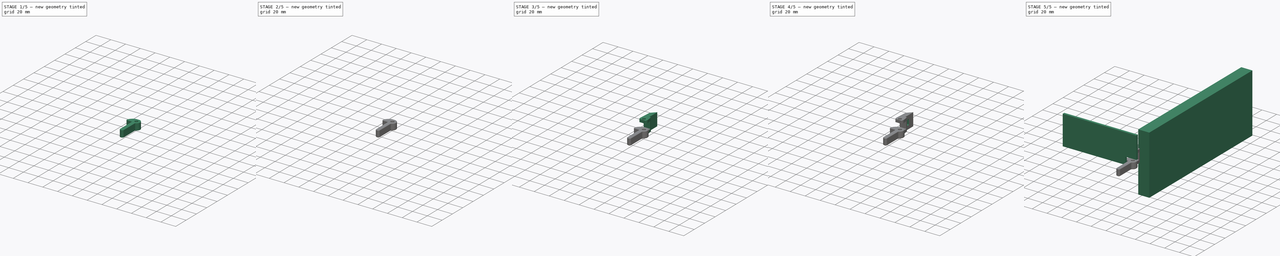
[diagram: build sequence overview — one tinted view per stage of 5, left to right]
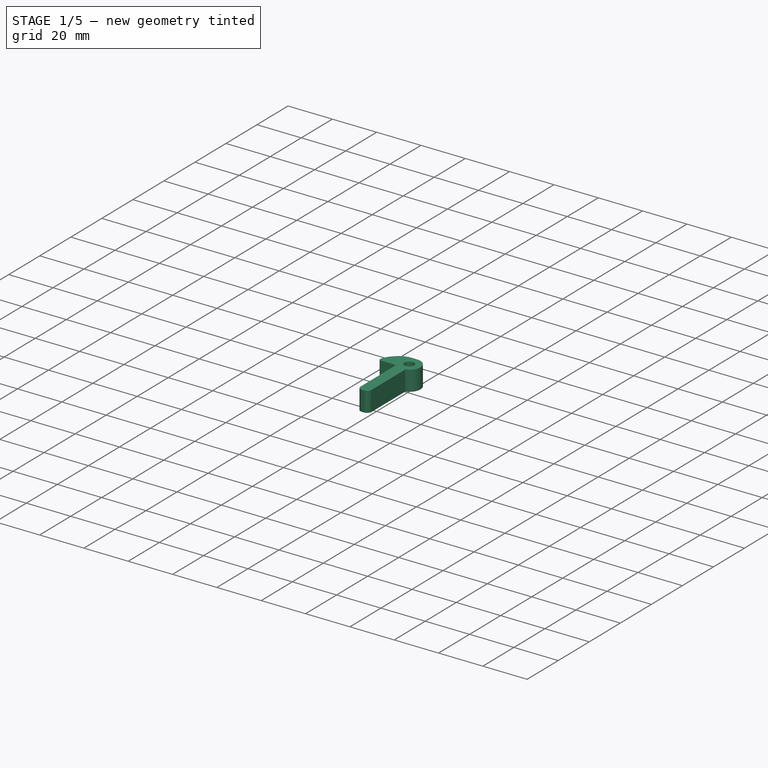
[diagram: stage 1 of 5 — iso view after this stage's code; geometry added in this stage tinted green]
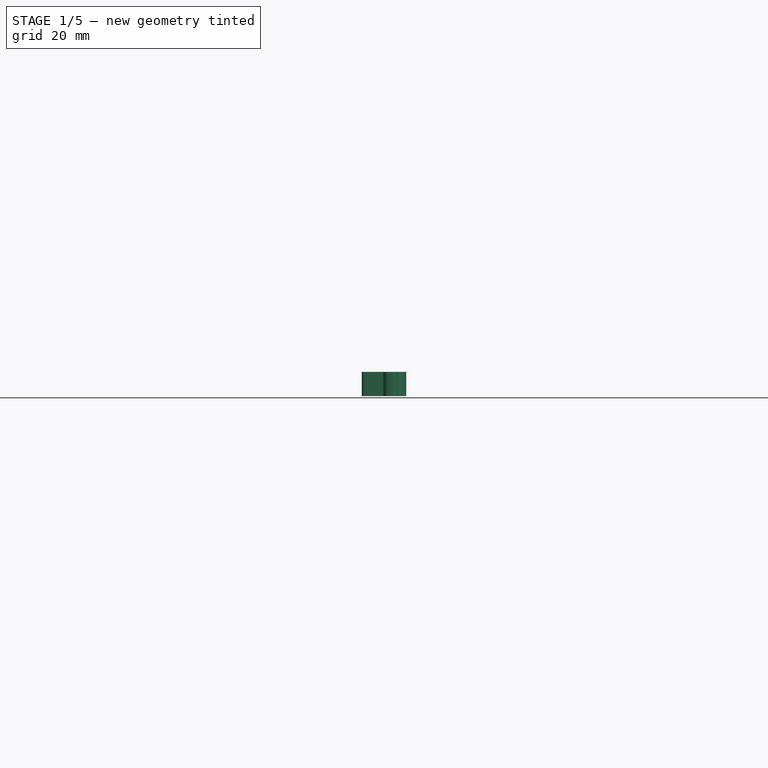
[diagram: stage 1 of 5 — front view after this stage's code; geometry added in this stage tinted green]
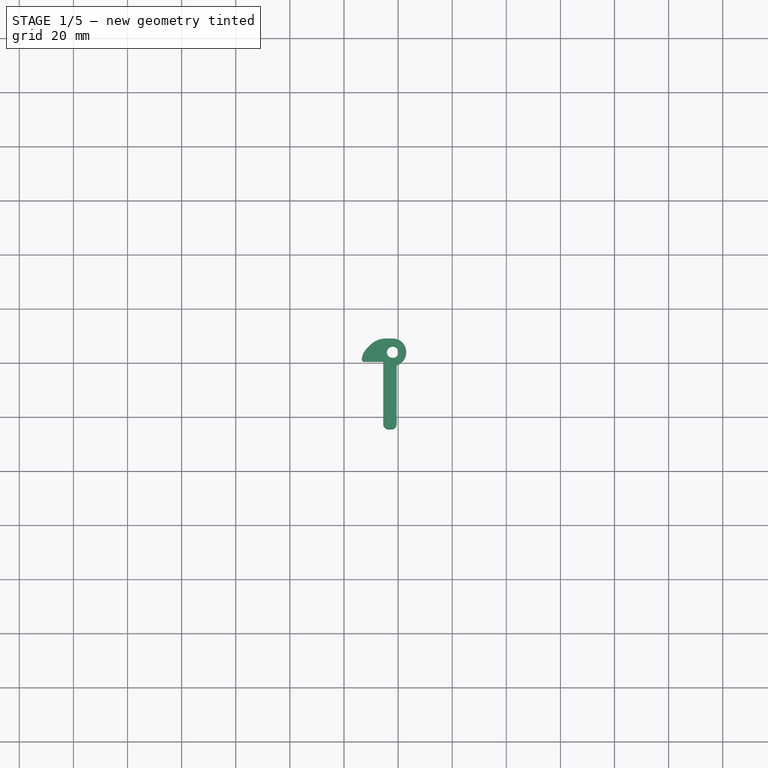
[diagram: stage 1 of 5 — top view after this stage's code; geometry added in this stage tinted green]
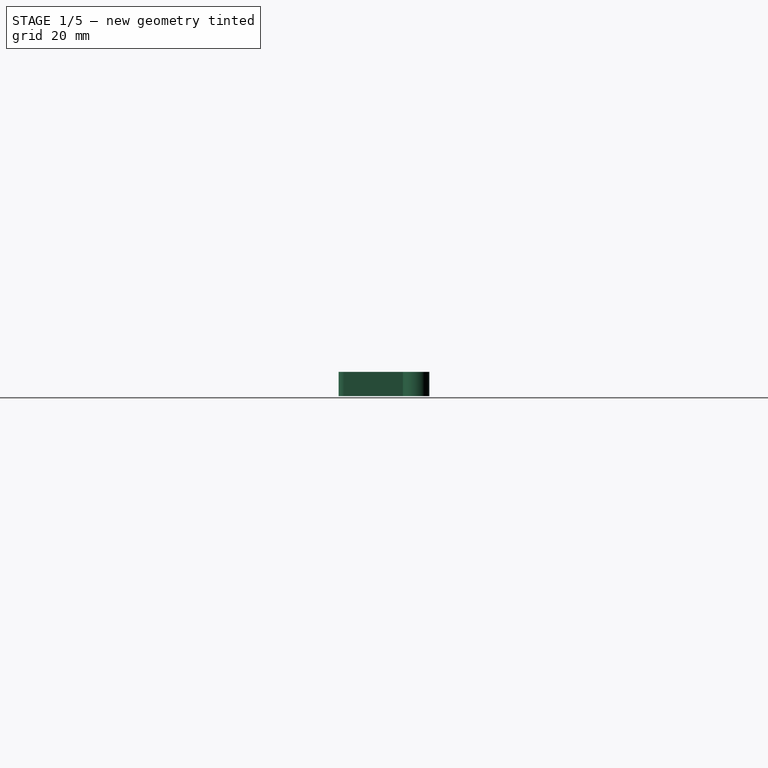
[diagram: stage 1 of 5 — right view after this stage's code; geometry added in this stage tinted green]
FCSTD DOCUMENT  (FreeCAD 0.20R25645 (Git))
Label: card-lever
License: All rights reserved
LicenseURL: http://en.wikipedia.org/wiki/All_rights_reserved
objects: Sketcher::SketchObject×9, PartDesign::Pad×6, PartDesign::Fillet×6, PartDesign::Chamfer×5, PartDesign::Body×4, PartDesign::Pocket×3
note: 53 computed .brp shape members not serialized (recipe doc carries the construction recipe); baked Part::Feature solids carry a one-line shape summary decoded from their .brp

FEATURE [PartDesign::Body] Body006  label="RodHolder"
  Group = -> [Sketch010,Pad010,Sketch011,Pocket,Sketch012,Pocket001,Sketch013,Pocket002,Chamfer003,Fillet,Chamfer004]
  Origin = -> Origin006
  Placement = pos=(0,0,-4) rot=(0,0,1;0rad)
  Tip = -> Chamfer004
FEATURE [Sketcher::SketchObject] Sketch017
  FullyConstrained = true
  MapMode = 5
  Support = -> [XY_Plane007]
  sketch-geometry (9):
    g0: Circle CenterX=-2 CenterY=4 CenterZ=0 NormalX=0 NormalY=0 NormalZ=1 AngleXU=0 Radius=2.15
    g1: LineSegment StartX=-13.5 StartY=0.5 StartZ=0 EndX=-5.5 EndY=0.5 EndZ=0
    g2: LineSegment StartX=-5.5 StartY=0.5 StartZ=0 EndX=-5.5 EndY=-24.5 EndZ=0
    g3: LineSegment StartX=-5.5 StartY=-24.5 StartZ=0 EndX=-0.5 EndY=-24.5 EndZ=0
    g4: LineSegment StartX=-0.5 StartY=-24.5 StartZ=0 EndX=-0.5 EndY=-0.769696 EndZ=0
    g5: ArcOfCircle CenterX=-2 CenterY=4 CenterZ=0 NormalX=0 NormalY=0 NormalZ=1 AngleXU=0 Radius=5 StartAngle=5.01708 EndAngle=7.85398
    g6: LineSegment StartX=-7.89949 StartY=9 StartZ=0 EndX=-2 EndY=9 EndZ=0
    g7: LineSegment StartX=-7.89949 StartY=9 StartZ=0 EndX=-11.4497 EndY=5.44975 EndZ=0
    g8: ArcOfCircle CenterX=-6.5 CenterY=0.5 CenterZ=0 NormalX=0 NormalY=0 NormalZ=1 AngleXU=0 Radius=7 StartAngle=2.35619 EndAngle=3.14159
  constraints (26):
    c: Radius(g0) = 2.15
    c: DistanceX(g0,g-1) = 2
    c: DistanceY(g-1,g0) = 4
    c: Horizontal(g1)
    c: Coincident(g1,g2)
    c: Vertical(g2)
    c: Coincident(g2,g3)
    c: Horizontal(g3)
    c: Coincident(g3,g4)
    c: Vertical(g4)
    c: Coincident(g5,g0)
    c: Coincident(g5,g4)
    c: Radius(g5) = 5
    c: Horizontal(g6)
    c: Coincident(g6,g7)
    c: PointOnObject(g8,g1)
    c: Coincident(g8,g1)
    c: DistanceY(g-1,g8) = 0.5
    c: DistanceX(g3,g3) = 5
    c: DistanceX(g4,g-1) = 0.5
    c: DistanceX(g1,g1) = 8
    c: Tangent(g8,g7) = -1.5708
    c: DistanceY(g2,g2) = 25
    c: Tangent(g6,g5) = 1.5708
    c: Angle(g7) = -2.35619
    c: Radius(g8) = 7
FEATURE [PartDesign::Pad] Pad013
  Direction = (0,0,1)
  Length = 9
  Length2 = 100
  Midplane = true
  Profile = -> Sketch017
  Refine = true
  Type = 0
FEATURE [PartDesign::Fillet] Fillet009
  Base = -> Pad013 [Edge5,Edge8]
  BaseFeature = -> Pad013
  Radius = 2
  Refine = true
  SupportTransform = false
FEATURE [PartDesign::Fillet] Fillet010
  Base = -> Fillet009 [Edge17]
  BaseFeature = -> Fillet009
  Radius = 1
  Refine = true
  SupportTransform = false
FEATURE [PartDesign::Fillet] Fillet011
  Base = -> Fillet010 [Edge24]
  BaseFeature = -> Fillet010
  Radius = 8
  Refine = true
  SupportTransform = false
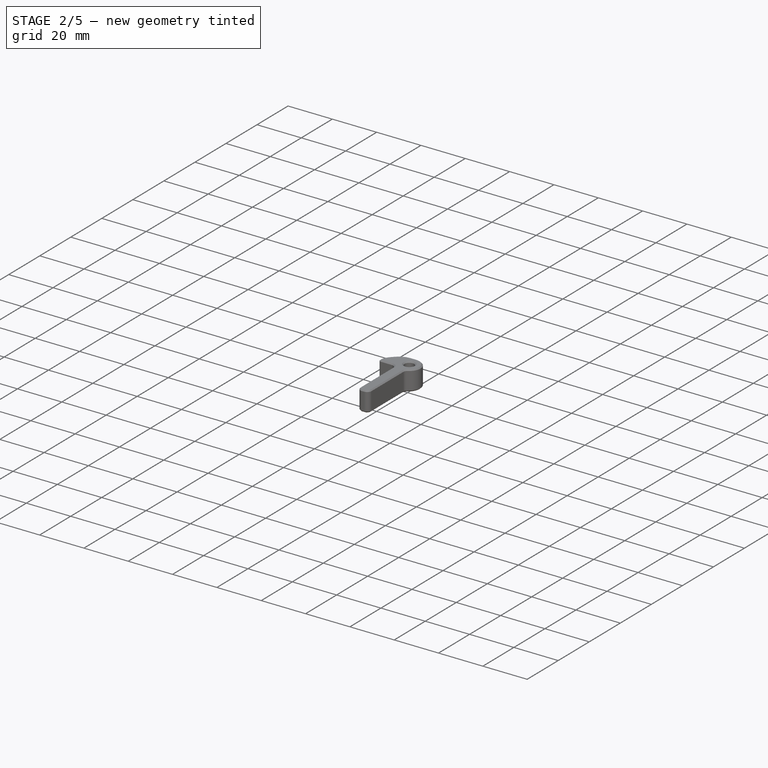
[diagram: stage 2 of 5 — iso view after this stage's code; geometry added in this stage tinted green]
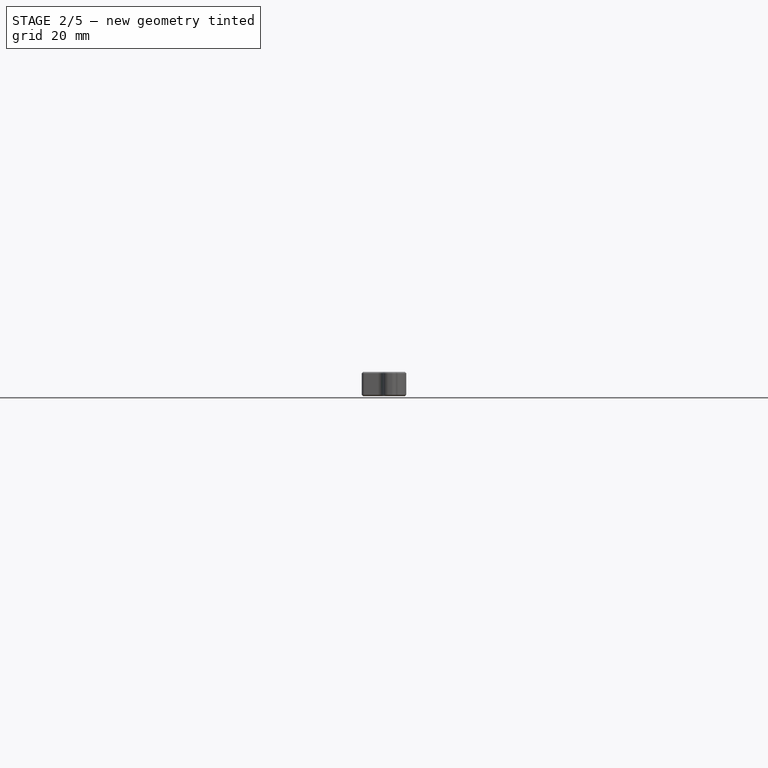
[diagram: stage 2 of 5 — front view after this stage's code; geometry added in this stage tinted green]
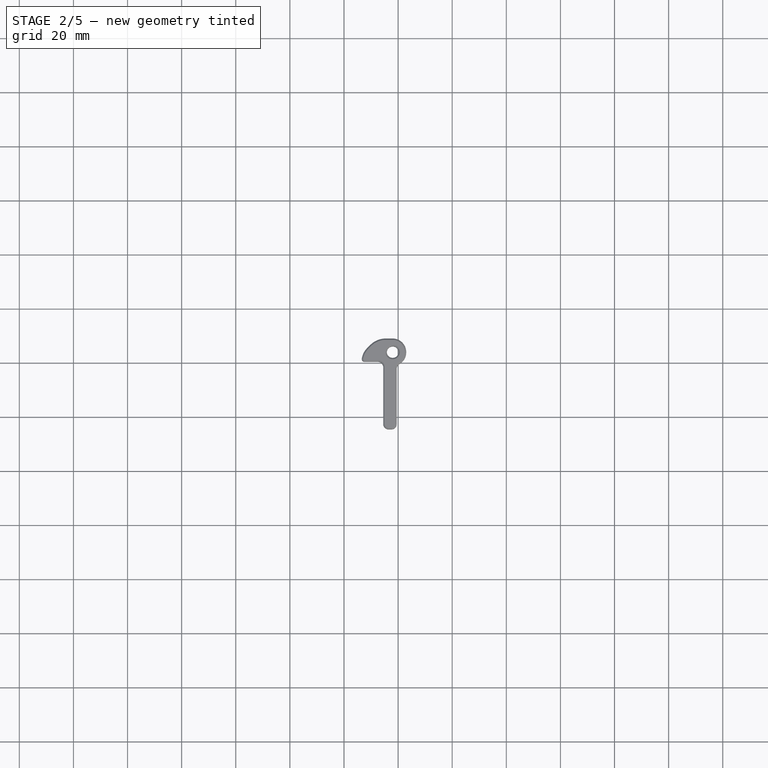
[diagram: stage 2 of 5 — top view after this stage's code; geometry added in this stage tinted green]
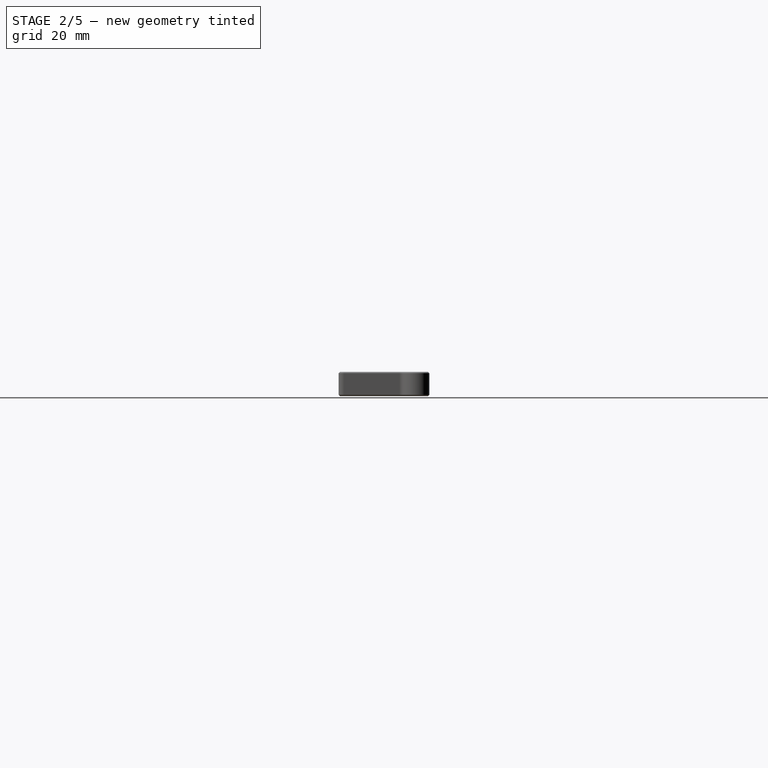
[diagram: stage 2 of 5 — right view after this stage's code; geometry added in this stage tinted green]
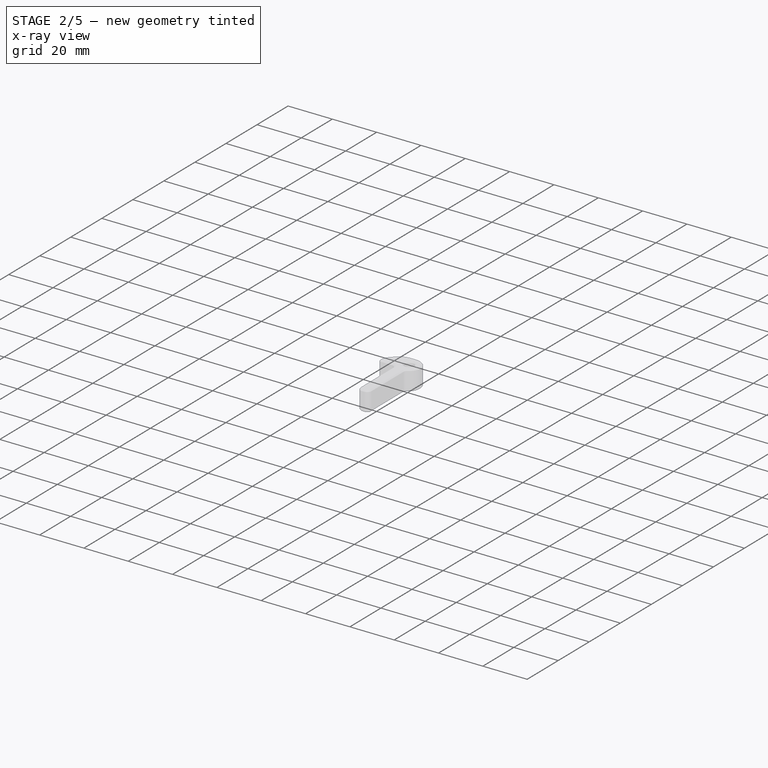
[diagram: stage 2 of 5 — x-ray composite at the iso view; earlier geometry ghosted, this stage's added geometry solid]
FEATURE [PartDesign::Fillet] Fillet012
  Base = -> Fillet011 [Edge25]
  BaseFeature = -> Fillet011
  Radius = 2
  Refine = true
  SupportTransform = false
FEATURE [PartDesign::Fillet] Fillet013
  Base = -> Fillet012 [Edge38]
  BaseFeature = -> Fillet012
  Radius = 2
  Refine = true
  SupportTransform = false
FEATURE [PartDesign::Chamfer] Chamfer005
  Angle = 45
  Base = -> Fillet013 [Edge45,Edge15]
  BaseFeature = -> Fillet013
  ChamferType = 0
  FlipDirection = false
  Refine = true
  Size = 0.5
  Size2 = 1
  SupportTransform = false
FEATURE [PartDesign::Chamfer] Chamfer006
  Angle = 45
  Base = -> Chamfer005 [Edge2,Edge20]
  BaseFeature = -> Chamfer005
  ChamferType = 0
  FlipDirection = false
  Refine = true
  Size = 0.5
  Size2 = 1
  SupportTransform = false
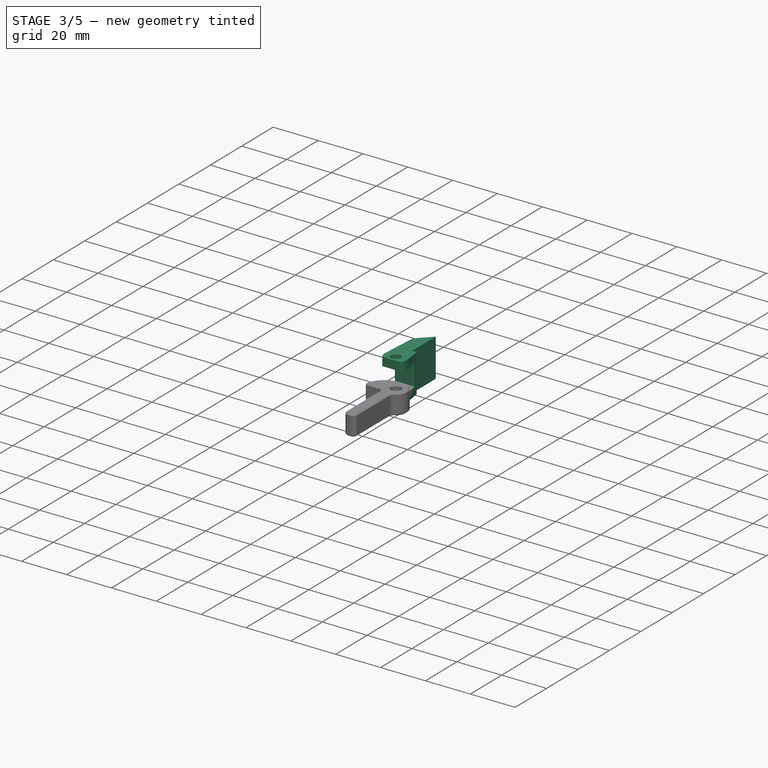
[diagram: stage 3 of 5 — iso view after this stage's code; geometry added in this stage tinted green]
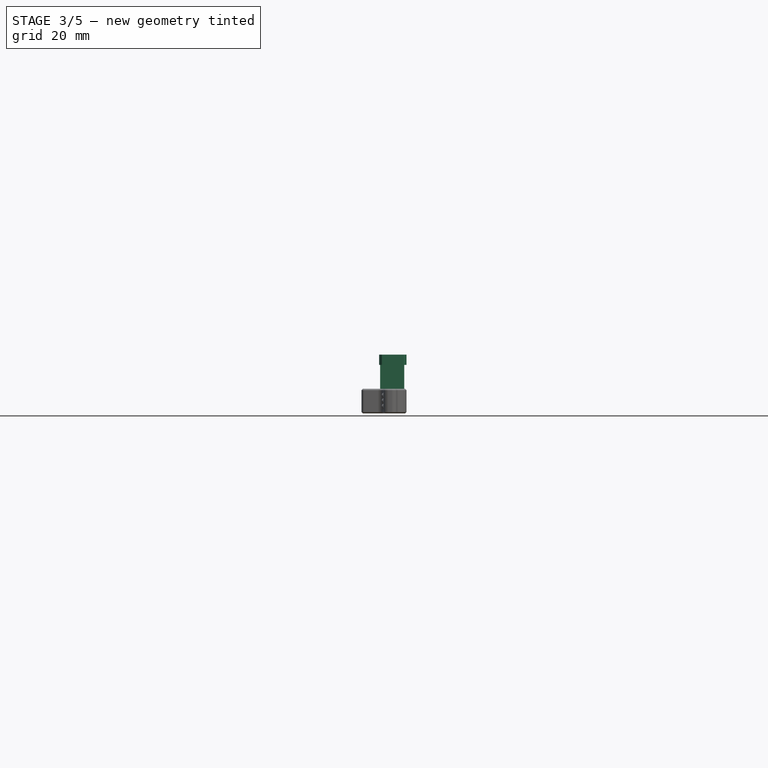
[diagram: stage 3 of 5 — front view after this stage's code; geometry added in this stage tinted green]
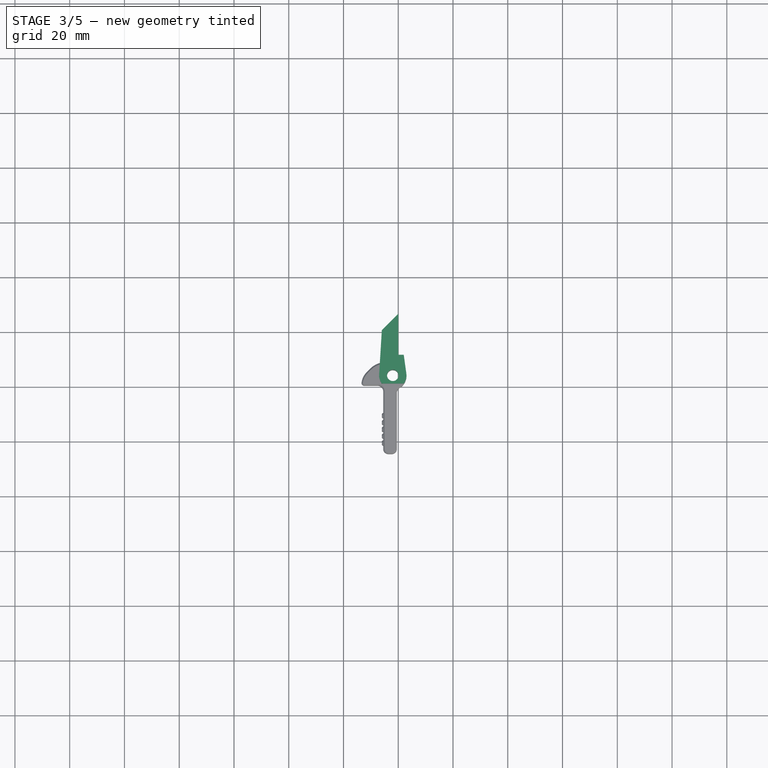
[diagram: stage 3 of 5 — top view after this stage's code; geometry added in this stage tinted green]
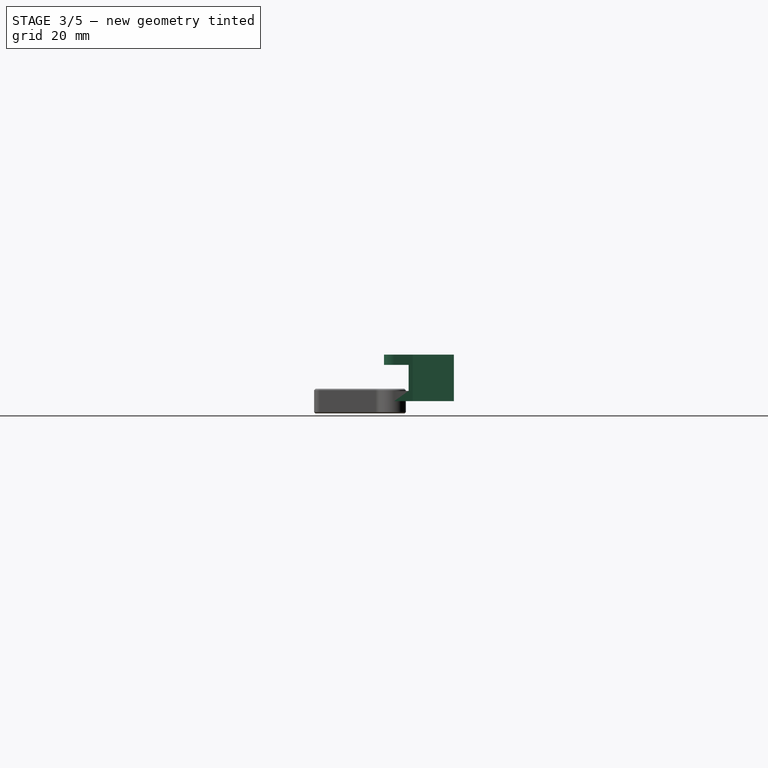
[diagram: stage 3 of 5 — right view after this stage's code; geometry added in this stage tinted green]
FEATURE [PartDesign::Body] Body  label="Panel"
  Group = -> [Sketch,Pad,Sketch002,Pad002]
  Origin = -> Origin
  Tip = -> Pad002
FEATURE [Sketcher::SketchObject] Sketch010
  FullyConstrained = true
  MapMode = 5
  Support = -> [XY_Plane006]
  sketch-geometry (9):
    g0: LineSegment StartX=0 StartY=26.5 StartZ=0 EndX=0 EndY=11.5 EndZ=0
    g1: LineSegment StartX=0 StartY=11.5 StartZ=0 EndX=2 EndY=11.5 EndZ=0
    g2: LineSegment StartX=2 StartY=11.5 StartZ=0 EndX=2.95183 EndY=4.69236 EndZ=0
    g3: LineSegment StartX=-6.99067 StartY=4.30529 StartZ=0 EndX=-6 EndY=20.5 EndZ=0
    g4: LineSegment StartX=0 StartY=26.5 StartZ=0 EndX=-6 EndY=20.5 EndZ=0
    g5: ArcOfCircle CenterX=-2 CenterY=4 CenterZ=0 NormalX=0 NormalY=0 NormalZ=1 AngleXU=0 Radius=5 StartAngle=3.0805 EndAngle=3.78509
    g6: ArcOfCircle CenterX=-2 CenterY=4 CenterZ=0 NormalX=0 NormalY=0 NormalZ=1 AngleXU=0 Radius=5 StartAngle=5.63968 EndAngle=6.4221
    g7: LineSegment StartX=-6 StartY=1 StartZ=0 EndX=2 EndY=1 EndZ=0
    g8: Circle CenterX=-2 CenterY=4 CenterZ=0 NormalX=0 NormalY=0 NormalZ=1 AngleXU=0 Radius=2.1
  constraints (25):
    c: Vertical(g0)
    c: PointOnObject(g0,g-2)
    c: DistanceY(g-1,g0) = 11.5
    c: Coincident(g0,g1)
    c: Horizontal(g1)
    c: Coincident(g1,g2)
    c: DistanceX(g1,g1) = 2
    c: DistanceY(g0,g0) = 15
    c: Coincident(g4,g0)
    c: Coincident(g4,g3)
    c: Coincident(g6,g5)
    c: DistanceX(g5,g-1) = 2
    c: DistanceY(g-1,g5) = 4
    c: Tangent(g5,g3) = 1.5708
    c: Equal(g5,g6)
    c: Radius(g5) = 5
    c: Coincident(g7,g5)
    c: Coincident(g7,g6)
    c: Horizontal(g7)
    c: DistanceY(g-1,g6) = 1
    c: Coincident(g8,g5)
    c: Radius(g8) = 2.1
    c: Angle(g4) = -2.35619
    c: DistanceX(g3,g0) = 6
    c: Tangent(g6,g2) = 1.5708
FEATURE [PartDesign::Pad] Pad010
  Direction = (0,0,1)
  Length = 17
  Length2 = 100
  Profile = -> Sketch010
  Refine = true
  Type = 0
FEATURE [Sketcher::SketchObject] Sketch011
  ExternalGeometry = -> [Pad010]
  FullyConstrained = true
  MapMode = 5
  Placement = pos=(0,0,0) rot=(0.57735,0.57735,0.57735;2.0944rad)
  Support = -> [YZ_Plane006]
  sketch-geometry (5):
    g0: LineSegment StartX=1 StartY=13.25 StartZ=0 EndX=10 EndY=13.25 EndZ=0
    g1: LineSegment StartX=10 StartY=13.25 StartZ=0 EndX=10 EndY=3.75 EndZ=0
    g2: LineSegment StartX=10 StartY=3.75 StartZ=0 EndX=1 EndY=3.75 EndZ=0
    g3: LineSegment StartX=1 StartY=3.75 StartZ=0 EndX=1 EndY=13.25 EndZ=0
    g4: LineSegment StartX=1 StartY=8.5 StartZ=0 EndX=10 EndY=8.5 EndZ=0
  constraints (14):
    c: Coincident(g0,g1)
    c: Coincident(g1,g2)
    c: Coincident(g2,g3)
    c: Coincident(g3,g0)
    c: Horizontal(g0)
    c: Horizontal(g2)
    c: Vertical(g1)
    c: PointOnObject(g0,g-3)
    c: PointOnObject(g4,g3)
    c: PointOnObject(g4,g1)
    c: Symmetric(g0,g2,g4)
    c: Symmetric(g-3,g-3,g4)
    c: DistanceY(g3,g3) = 9.5
    c: DistanceX(g0,g0) = 9
FEATURE [PartDesign::Pocket] Pocket
  BaseFeature = -> Pad010
  Length = 5
  Length2 = 100
  Midplane = true
  Profile = -> Sketch011
  Refine = true
  Type = 1
FEATURE [Sketcher::SketchObject] Sketch018
  ExternalGeometry = -> [Chamfer006]
  FullyConstrained = true
  MapMode = 5
  Placement = pos=(-5.5,0,0) rot=(0.57735,-0.57735,-0.57735;2.0944rad)
  Support = -> [Chamfer006]
  sketch-geometry (12):
    g0: Circle CenterX=10.5 CenterY=2 CenterZ=0 NormalX=0 NormalY=0 NormalZ=1 AngleXU=0 Radius=1
    g1: Circle CenterX=15.5 CenterY=2 CenterZ=0 NormalX=0 NormalY=0 NormalZ=1 AngleXU=0 Radius=1
    g2: Circle CenterX=20.5 CenterY=2 CenterZ=0 NormalX=0 NormalY=0 NormalZ=1 AngleXU=0 Radius=1
    g3: Circle CenterX=13 CenterY=0 CenterZ=0 NormalX=0 NormalY=0 NormalZ=1 AngleXU=0 Radius=1
    g4: Circle CenterX=18 CenterY=0 CenterZ=0 NormalX=0 NormalY=0 NormalZ=1 AngleXU=0 Radius=1
    g5: Circle CenterX=10.5 CenterY=-2 CenterZ=0 NormalX=0 NormalY=0 NormalZ=1 AngleXU=0 Radius=1
    g6: Circle CenterX=15.5 CenterY=-2 CenterZ=0 NormalX=0 NormalY=0 NormalZ=1 AngleXU=0 Radius=1
    g7: Circle CenterX=20.5 CenterY=-2 CenterZ=0 NormalX=0 NormalY=0 NormalZ=1 AngleXU=0 Radius=1
    g8: LineSegment StartX=10.5 StartY=2 StartZ=0 EndX=15.5 EndY=2 EndZ=0
    g9: LineSegment StartX=15.5 StartY=2 StartZ=0 EndX=20.5 EndY=2 EndZ=0
    g10: LineSegment StartX=13 StartY=0 StartZ=0 EndX=18 EndY=0 EndZ=0
    g11: LineSegment StartX=15.5 StartY=-2 StartZ=0 EndX=15.5 EndY=2 EndZ=0
  constraints (28):
    c: PointOnObject(g3,g-1)
    c: Equal(g1,g0)
    c: Equal(g0,g2)
    c: Equal(g2,g4)
    c: Equal(g4,g3)
    c: Equal(g3,g5)
    c: Equal(g5,g6)
    c: Equal(g6,g7)
    c: Radius(g0) = 1
    c: Coincident(g8,g0)
    c: Horizontal(g8)
    c: Coincident(g9,g8)
    c: Coincident(g9,g2)
    c: Horizontal(g9)
    c: Coincident(g1,g8)
    c: Equal(g8,g9)
    c: Symmetric(g5,g0,g-1)
    c: Symmetric(g6,g1,g-1)
    c: Symmetric(g7,g2,g-1)
    c: Coincident(g10,g3)
    c: Coincident(g10,g4)
    c: Equal(g10,g8)
    c: Coincident(g11,g6)
    c: Coincident(g11,g1)
    c: Symmetric(g3,g4,g11)
    c: DistanceY(g3,g0) = 2
    c: DistanceX(g8,g8) = 5
    c: DistanceX(g2,g-3) = 2
FEATURE [PartDesign::Pad] Pad014
  BaseFeature = -> Chamfer006
  Direction = (-1,0,0)
  Length = 0.5
  Length2 = 100
  Profile = -> Sketch018
  Refine = true
  Type = 0
FEATURE [PartDesign::Chamfer] Chamfer007
  Angle = 45
  Base = -> Pad014 [Edge88,Edge94,Edge90,Edge92,Edge98,Edge100,Edge102,Edge96]
  BaseFeature = -> Pad014
  ChamferType = 0
  FlipDirection = false
  Refine = true
  Size = 0.4
  Size2 = 1
  SupportTransform = false
FEATURE [PartDesign::Body] Body007  label="Lever"
  Group = -> [Sketch017,Pad013,Fillet009,Fillet010,Fillet011,Fillet012,Fillet013,Chamfer005,Chamfer006,Sketch018,Pad014,Chamfer007]
  Origin = -> Origin007
  Tip = -> Chamfer007
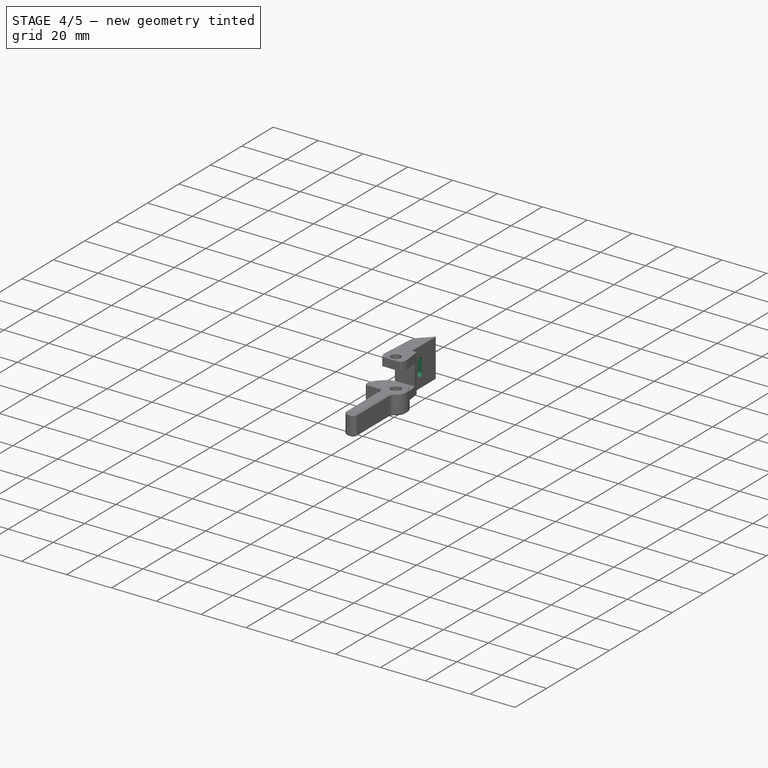
[diagram: stage 4 of 5 — iso view after this stage's code; geometry added in this stage tinted green]
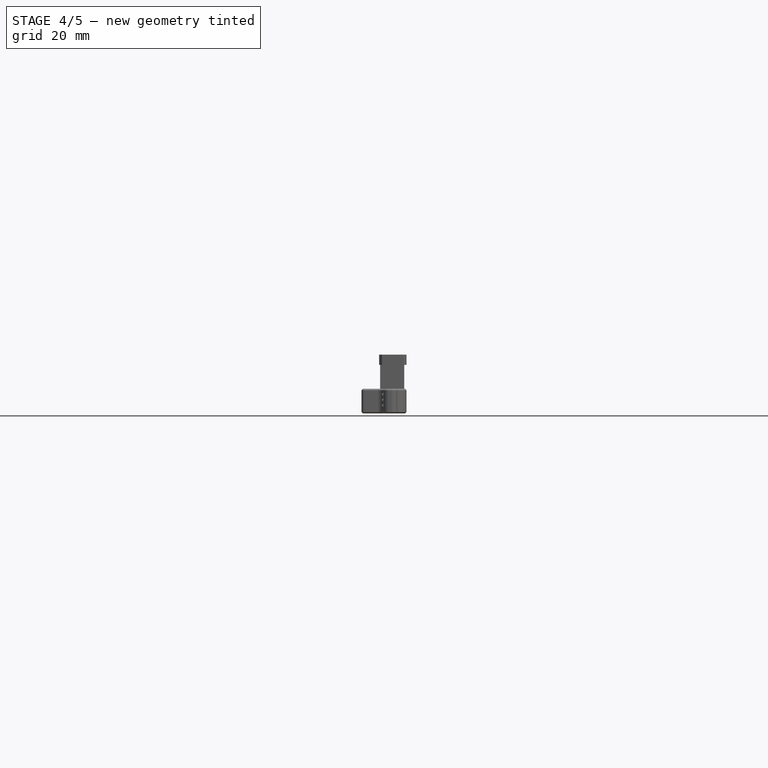
[diagram: stage 4 of 5 — front view after this stage's code; geometry added in this stage tinted green]
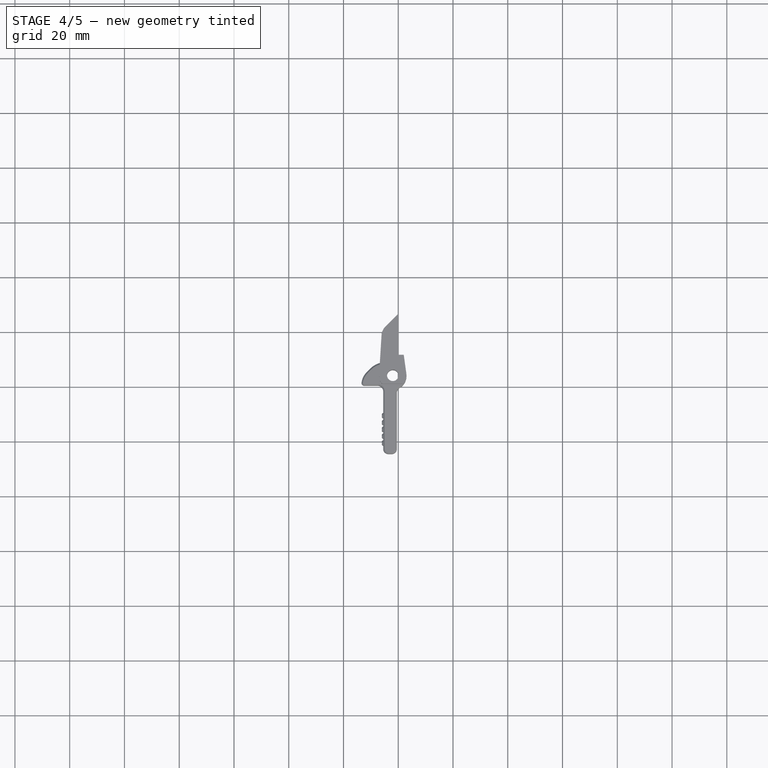
[diagram: stage 4 of 5 — top view after this stage's code; geometry added in this stage tinted green]
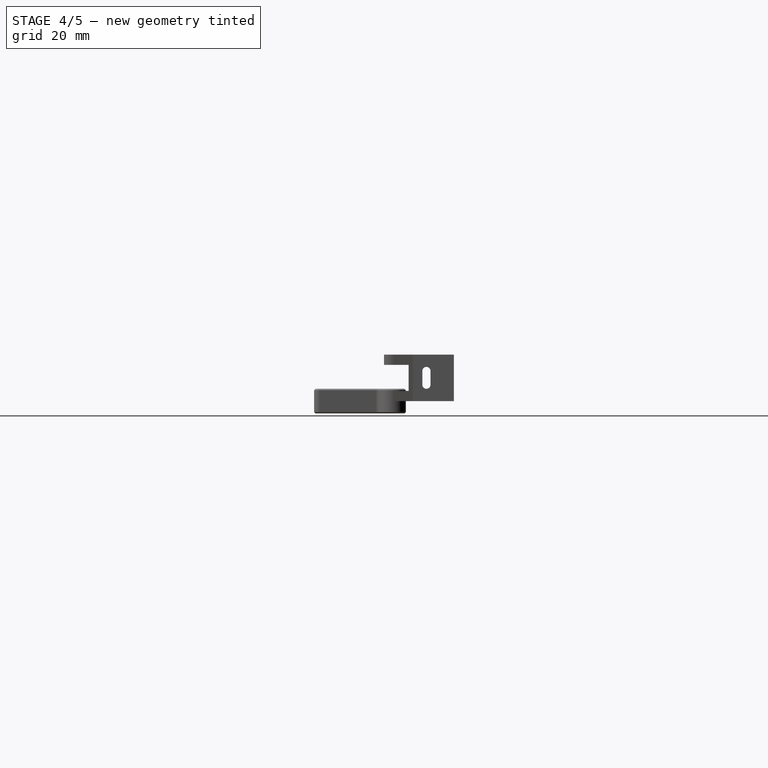
[diagram: stage 4 of 5 — right view after this stage's code; geometry added in this stage tinted green]
FEATURE [Sketcher::SketchObject] Sketch012
  ExternalGeometry = -> [Pocket]
  FullyConstrained = true
  MapMode = 5
  Placement = pos=(0,0,0) rot=(0.57735,0.57735,0.57735;2.0944rad)
  Support = -> [YZ_Plane006]
  sketch-geometry (5):
    g0: ArcOfCircle CenterX=16.5 CenterY=11 CenterZ=0 NormalX=0 NormalY=0 NormalZ=1 AngleXU=0 Radius=1.5 StartAngle=3e-16 EndAngle=3.14159
    g1: ArcOfCircle CenterX=16.5 CenterY=6 CenterZ=0 NormalX=0 NormalY=0 NormalZ=1 AngleXU=0 Radius=1.5 StartAngle=3.14159 EndAngle=6.28319
    g2: LineSegment StartX=15 StartY=11 StartZ=0 EndX=15 EndY=6 EndZ=0
    g3: LineSegment StartX=18 StartY=11 StartZ=0 EndX=18 EndY=6 EndZ=0
    g4: LineSegment StartX=10 StartY=8.5 StartZ=0 EndX=18 EndY=8.5 EndZ=0
  constraints (12):
    c: Tangent(g0,g3) = 1.5708
    c: Tangent(g0,g2) = -1.5708
    c: Tangent(g2,g1) = -1.5708
    c: Tangent(g3,g1) = 1.5708
    c: Vertical(g2)
    c: Radius(g0) = 1.5
    c: PointOnObject(g4,g3)
    c: Symmetric(g1,g0,g4)
    c: DistanceY(g1,g0) = 5
    c: DistanceX(g4,g4) = 8
    c: Symmetric(g-3,g-3,g4)
    c: PointOnObject(g4,g-3)
FEATURE [PartDesign::Pocket] Pocket001
  BaseFeature = -> Pocket
  Length = 5
  Length2 = 100
  Profile = -> Sketch012
  Refine = true
  Type = 1
FEATURE [Sketcher::SketchObject] Sketch013
  AttachmentOffset = pos=(0,0,-3) rot=(0,0,1;0rad)
  ExternalGeometry = -> [Pocket001]
  FullyConstrained = true
  MapMode = 5
  Placement = pos=(-3,7e-16,-7e-16) rot=(0.57735,0.57735,0.57735;2.0944rad)
  Support = -> [YZ_Plane006]
  sketch-geometry (4):
    g0: ArcOfCircle CenterX=16.5 CenterY=11 CenterZ=0 NormalX=0 NormalY=0 NormalZ=1 AngleXU=0 Radius=3 StartAngle=-4.583e-12 EndAngle=3.14159
    g1: ArcOfCircle CenterX=16.5 CenterY=6 CenterZ=0 NormalX=0 NormalY=0 NormalZ=1 AngleXU=0 Radius=3 StartAngle=3.14159 EndAngle=6.28319
    g2: LineSegment StartX=13.5 StartY=11 StartZ=0 EndX=13.5 EndY=6 EndZ=0
    g3: LineSegment StartX=19.5 StartY=11 StartZ=0 EndX=19.5 EndY=6 EndZ=0
  constraints (8):
    c: Tangent(g0,g3) = 1.5708
    c: Tangent(g0,g2) = -1.5708
    c: Tangent(g2,g1) = -1.5708
    c: Tangent(g3,g1) = 1.5708
    c: Vertical(g2)
    c: Radius(g0) = 3
    c: Coincident(g-7,g1)
    c: Coincident(g0,g-6)
FEATURE [PartDesign::Pocket] Pocket002
  BaseFeature = -> Pocket001
  Length = 5
  Length2 = 100
  Profile = -> Sketch013
  Refine = true
  Type = 1
FEATURE [PartDesign::Chamfer] Chamfer003
  Angle = 45
  Base = -> Pocket002 [Edge66]
  BaseFeature = -> Pocket002
  ChamferType = 0
  FlipDirection = false
  Refine = true
  Size = 1
  Size2 = 1
  SupportTransform = false
FEATURE [PartDesign::Fillet] Fillet
  Base = -> Chamfer003 [Edge35]
  BaseFeature = -> Chamfer003
  Radius = 5
  Refine = true
  SupportTransform = false
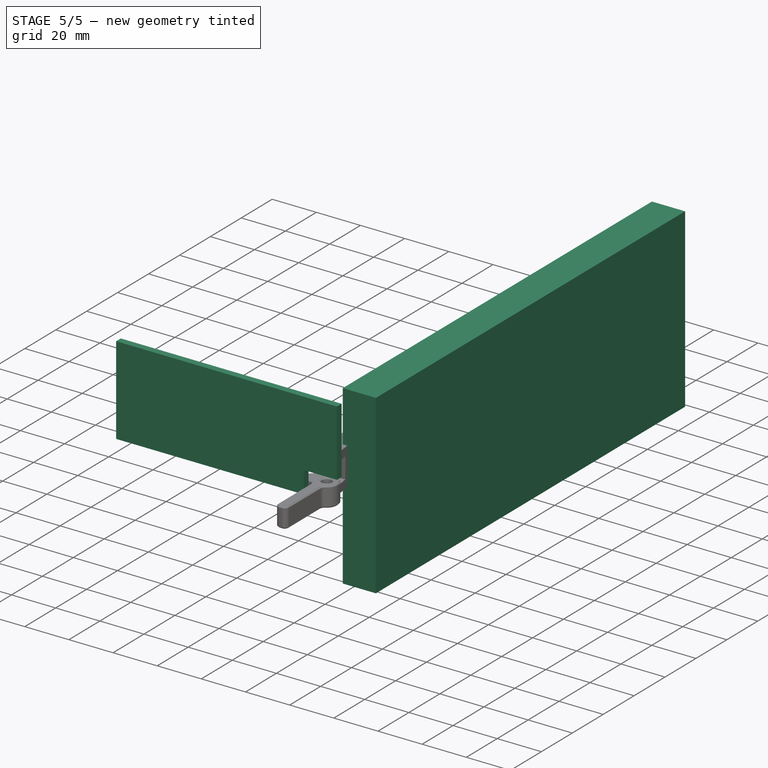
[diagram: stage 5 of 5 — iso view after this stage's code; geometry added in this stage tinted green]
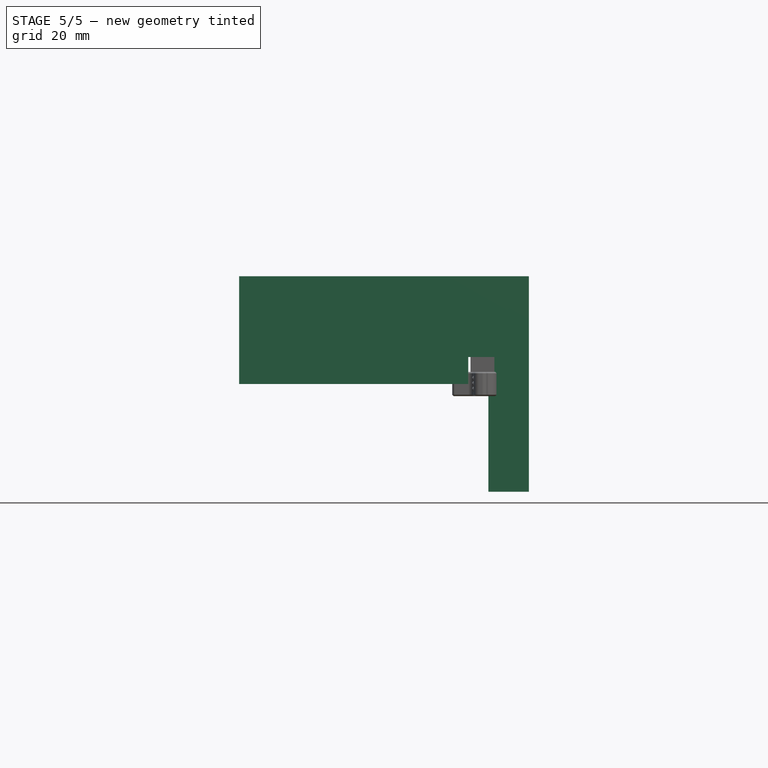
[diagram: stage 5 of 5 — front view after this stage's code; geometry added in this stage tinted green]
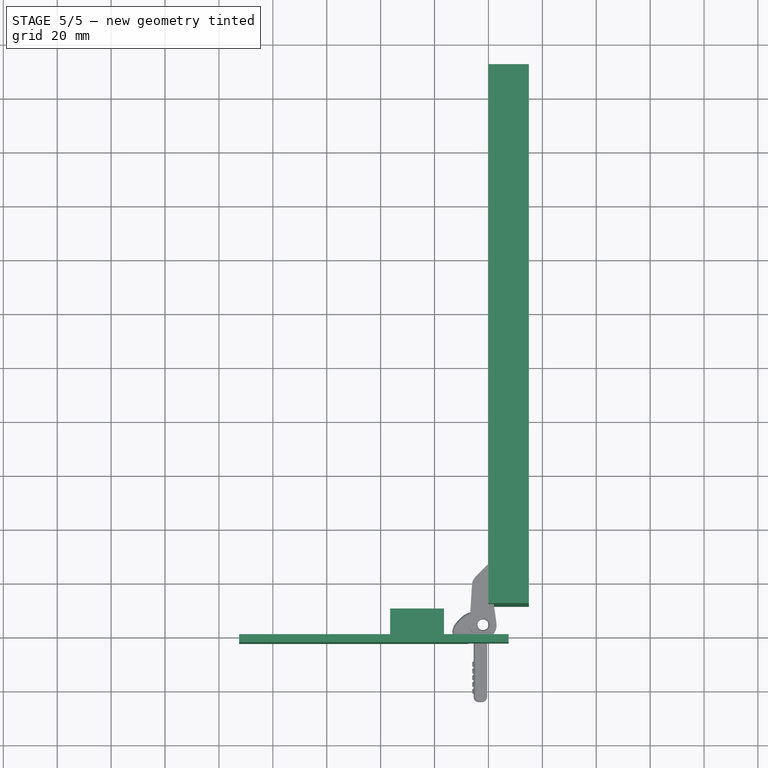
[diagram: stage 5 of 5 — top view after this stage's code; geometry added in this stage tinted green]
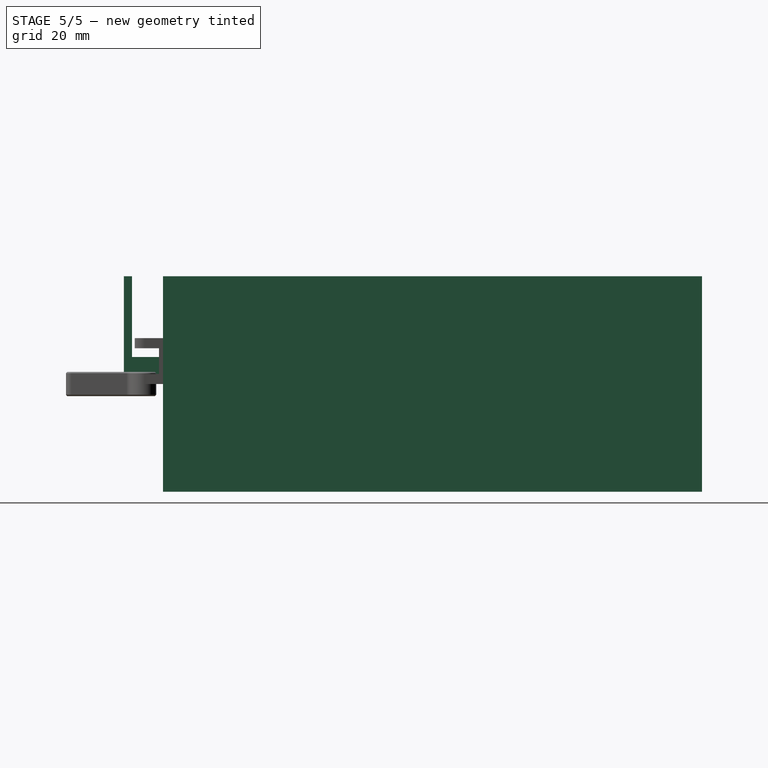
[diagram: stage 5 of 5 — right view after this stage's code; geometry added in this stage tinted green]
FEATURE [Sketcher::SketchObject] Sketch
  FullyConstrained = true
  MapMode = 5
  Placement = pos=(0,0,0) rot=(1,0,0;1.5708rad)
  Support = -> [XZ_Plane]
  sketch-geometry (6):
    g0: LineSegment StartX=-92.5 StartY=0 StartZ=0 EndX=-7.5 EndY=0 EndZ=0
    g1: LineSegment StartX=-7.5 StartY=0 StartZ=0 EndX=-7.5 EndY=10 EndZ=0
    g2: LineSegment StartX=-7.5 StartY=10 StartZ=0 EndX=7.5 EndY=10 EndZ=0
    g3: LineSegment StartX=7.5 StartY=10 StartZ=0 EndX=7.5 EndY=40 EndZ=0
    g4: LineSegment StartX=7.5 StartY=40 StartZ=0 EndX=-92.5 EndY=40 EndZ=0
    g5: LineSegment StartX=-92.5 StartY=40 StartZ=0 EndX=-92.5 EndY=0 EndZ=0
  constraints (17):
    c: PointOnObject(g0,g-1)
    c: PointOnObject(g0,g-1)
    c: Coincident(g0,g1)
    c: Vertical(g1)
    c: Coincident(g1,g2)
    c: Coincident(g2,g3)
    c: Vertical(g3)
    c: Coincident(g3,g4)
    c: Horizontal(g4)
    c: Coincident(g4,g5)
    c: Coincident(g5,g0)
    c: Vertical(g5)
    c: DistanceY(g5,g5) = 40
    c: DistanceX(g2,g2) = 15
    c: DistanceY(g1,g1) = 10
    c: Symmetric(g1,g2,g-2)
    c: DistanceX(g4,g4) = 100
FEATURE [PartDesign::Pad] Pad
  Direction = (0,-1,2e-16)
  Length = 3
  Length2 = 100
  Placement = pos=(0,0,0) rot=(1,0,0;1.5708rad)
  Profile = -> Sketch
  Refine = true
  Type = 0
FEATURE [Sketcher::SketchObject] Sketch001
  FullyConstrained = true
  MapMode = 5
  Support = -> [XY_Plane001]
  sketch-geometry (4):
    g0: LineSegment StartX=0 StartY=11.5 StartZ=0 EndX=15 EndY=11.5 EndZ=0
    g1: LineSegment StartX=15 StartY=11.5 StartZ=0 EndX=15 EndY=211.5 EndZ=0
    g2: LineSegment StartX=15 StartY=211.5 StartZ=0 EndX=0 EndY=211.5 EndZ=0
    g3: LineSegment StartX=0 StartY=211.5 StartZ=0 EndX=0 EndY=11.5 EndZ=0
  constraints (12):
    c: Coincident(g0,g1)
    c: Coincident(g1,g2)
    c: Coincident(g2,g3)
    c: Coincident(g3,g0)
    c: Horizontal(g0)
    c: Horizontal(g2)
    c: Vertical(g1)
    c: Vertical(g3)
    c: DistanceX(g2,g2) = 15
    c: PointOnObject(g0,g-2)
    c: DistanceY(g-1,g0) = 11.5
    c: DistanceY(g3,g3) = 200
FEATURE [PartDesign::Pad] Pad001
  Direction = (0,0,1)
  Length = 80
  Length2 = 100
  Midplane = true
  Profile = -> Sketch001
  Refine = true
  Type = 0
FEATURE [PartDesign::Body] Body001  label="Case"
  Group = -> [Sketch001,Pad001]
  Origin = -> Origin001
  Tip = -> Pad001
FEATURE [Sketcher::SketchObject] Sketch002
  ExternalGeometry = -> [Pad]
  FullyConstrained = true
  MapMode = 5
  Placement = pos=(0,0,0) rot=(-1,0,0;1.5708rad)
  Support = -> [Pad]
  sketch-geometry (4):
    g0: LineSegment StartX=-36.5 StartY=0 StartZ=0 EndX=-16.5 EndY=0 EndZ=0
    g1: LineSegment StartX=-16.5 StartY=0 StartZ=0 EndX=-16.5 EndY=-10 EndZ=0
    g2: LineSegment StartX=-16.5 StartY=-10 StartZ=0 EndX=-36.5 EndY=-10 EndZ=0
    g3: LineSegment StartX=-36.5 StartY=-10 StartZ=0 EndX=-36.5 EndY=0 EndZ=0
  constraints (12):
    c: Coincident(g0,g1)
    c: Coincident(g1,g2)
    c: Coincident(g2,g3)
    c: Coincident(g3,g0)
    c: Horizontal(g0)
    c: Horizontal(g2)
    c: Vertical(g1)
    c: Vertical(g3)
    c: PointOnObject(g0,g-1)
    c: DistanceY(g1,g1) = 10
    c: DistanceX(g2,g2) = 20
    c: DistanceX(g0,g-3) = 9
FEATURE [PartDesign::Pad] Pad002
  BaseFeature = -> Pad
  Direction = (0,1,-7e-16)
  Length = 10
  Length2 = 100
  Placement = pos=(0,0,0) rot=(1,0,0;1.5708rad)
  Profile = -> Sketch002
  Refine = true
  Type = 0
FEATURE [PartDesign::Chamfer] Chamfer004
  Angle = 45
  Base = -> Fillet [Edge66,Edge55,Edge38,Edge48]
  BaseFeature = -> Fillet
  ChamferType = 0
  FlipDirection = false
  Refine = true
  Size = 0.4
  Size2 = 1
  SupportTransform = false
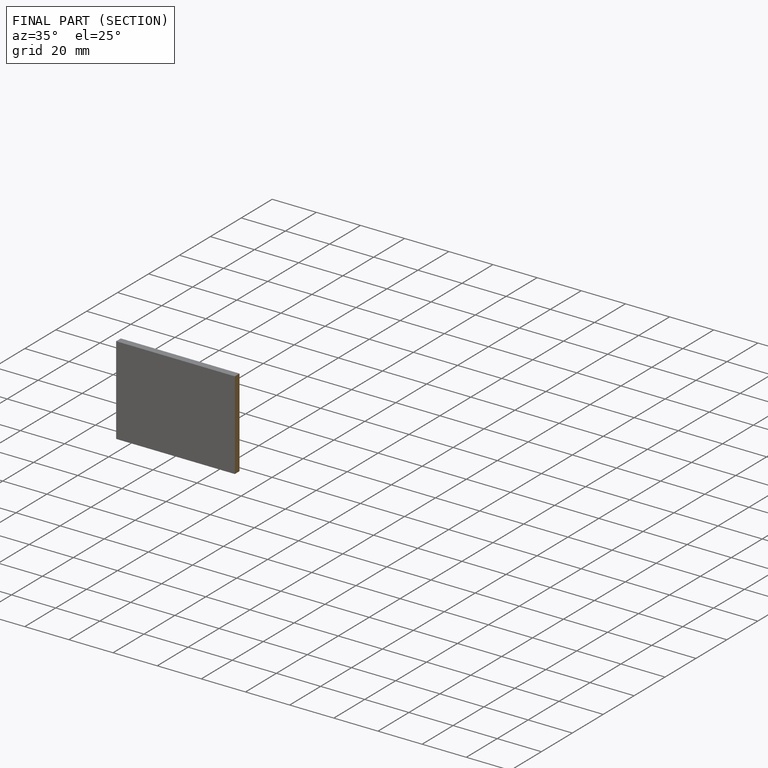
[diagram: finished part — half-section view (interior)]
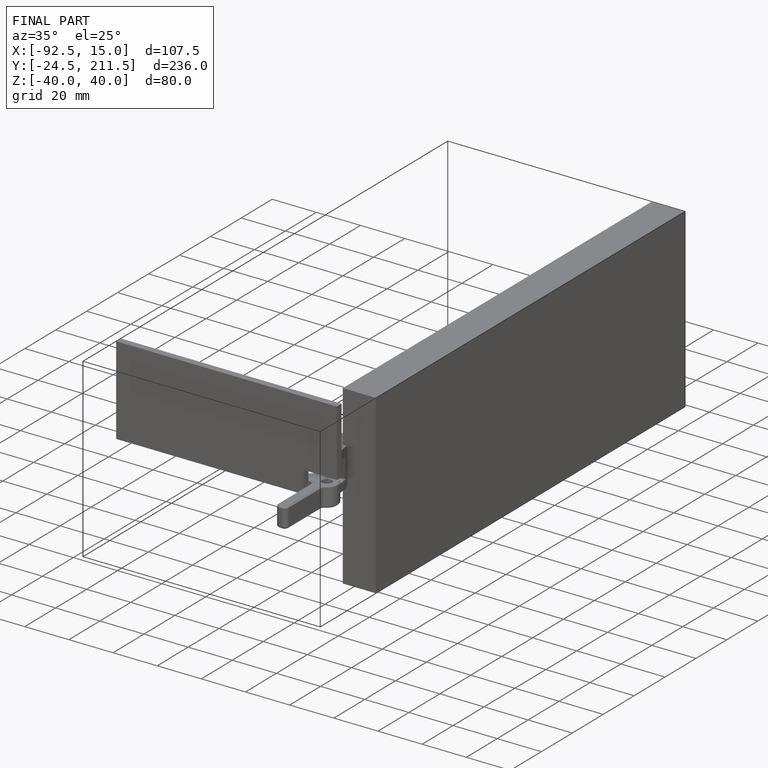
[diagram: finished part — iso view with bounding-box wireframe]
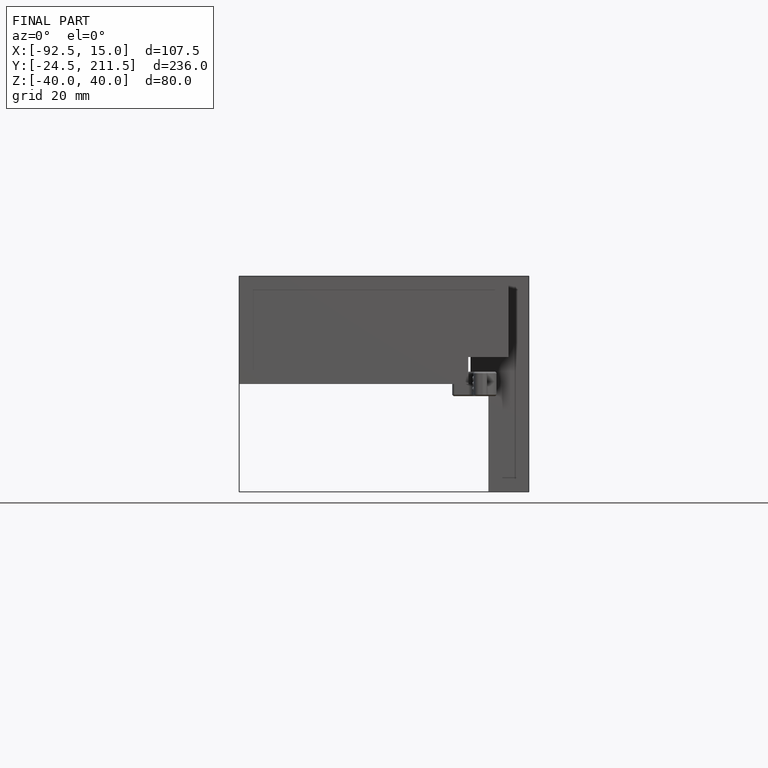
[diagram: finished part — front view with bounding-box wireframe]
